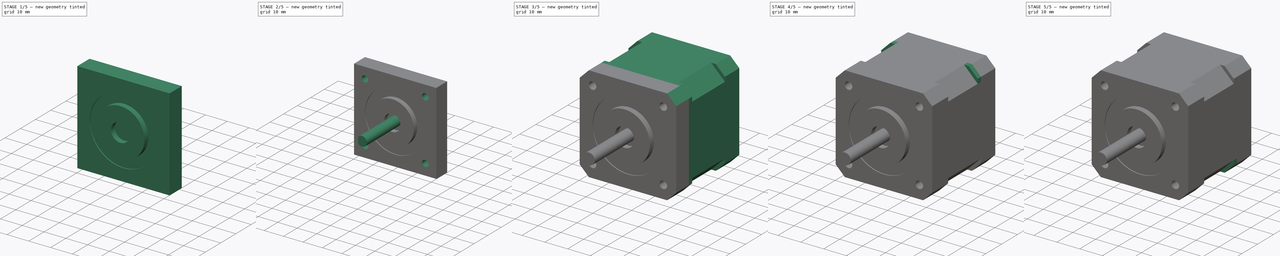
[diagram: build sequence overview — one tinted view per stage of 5, left to right]
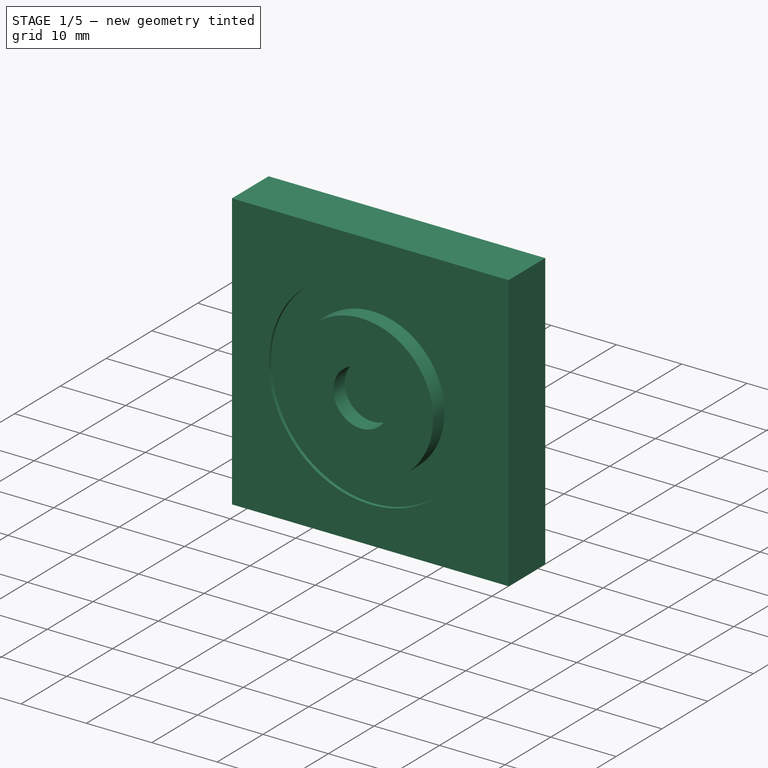
[diagram: stage 1 of 5 — iso view after this stage's code; geometry added in this stage tinted green]
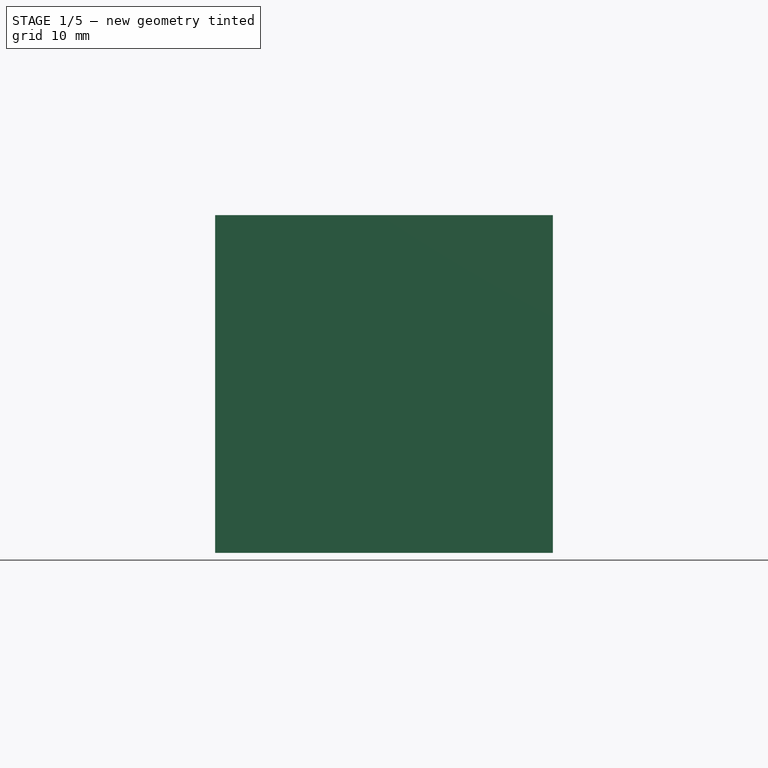
[diagram: stage 1 of 5 — front view after this stage's code; geometry added in this stage tinted green]
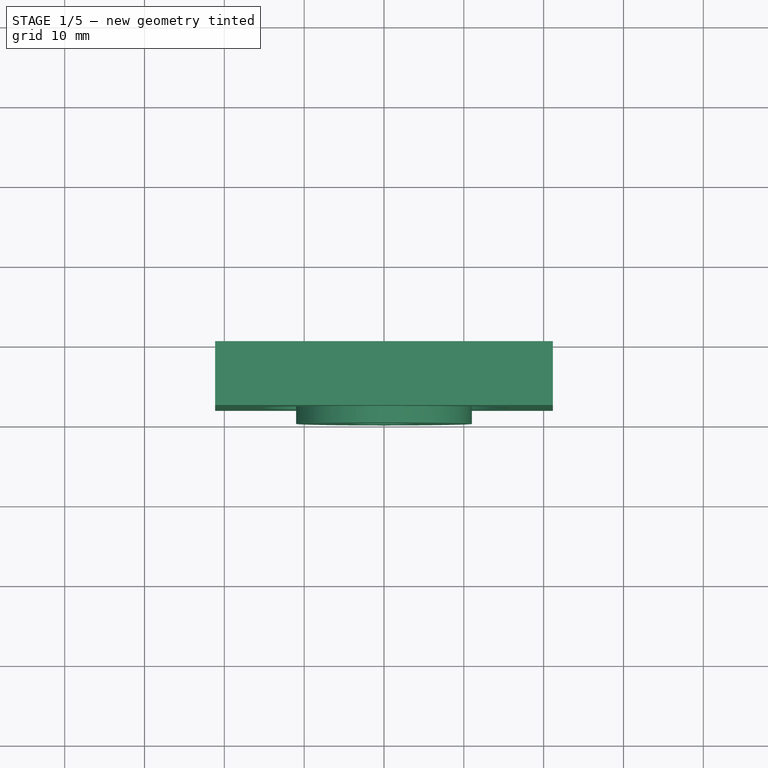
[diagram: stage 1 of 5 — top view after this stage's code; geometry added in this stage tinted green]
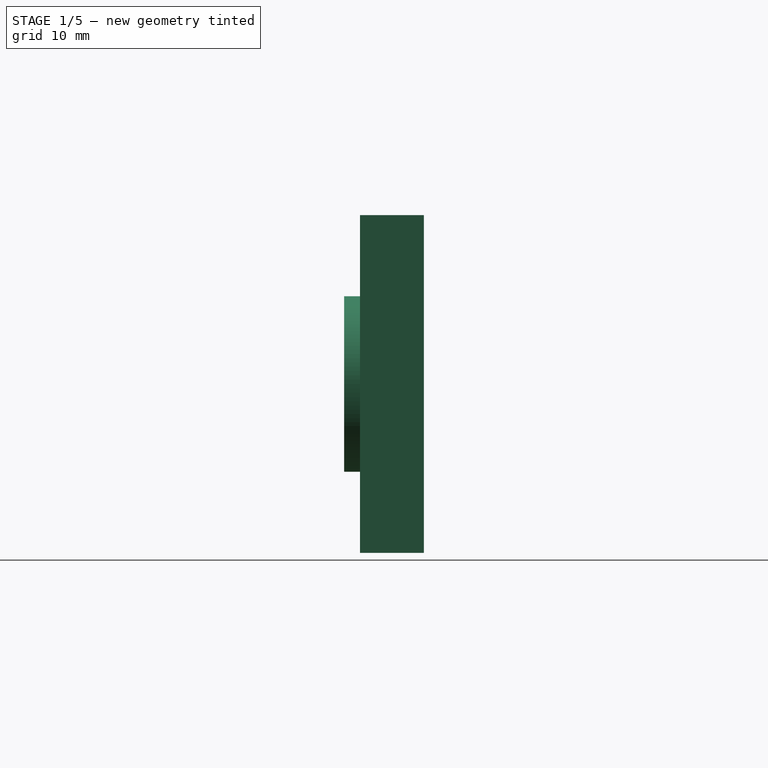
[diagram: stage 1 of 5 — right view after this stage's code; geometry added in this stage tinted green]
FCSTD DOCUMENT  (FreeCAD 0.18.3R)
Label: stepper_motor
License: All rights reserved
LicenseURL: http://en.wikipedia.org/wiki/All_rights_reserved
objects: Sketcher::SketchObject×12, PartDesign::Pad×11, PartDesign::Pocket×5, Part::Feature×4, PartDesign::Hole×1, PartDesign::Chamfer×1, PartDesign::Body×1
note: 52 computed .brp shape members not serialized (recipe doc carries the construction recipe); baked Part::Feature solids carry a one-line shape summary decoded from their .brp

FEATURE [Sketcher::SketchObject] Sketch
  MapMode = 5
  Placement = pos=(0,0,0) rot=(1,0,0;1.5708rad)
  Support = -> [XZ_Plane]
  sketch-geometry (4):
    g0: LineSegment StartX=-21.15 StartY=21.15 StartZ=0 EndX=21.15 EndY=21.15 EndZ=0
    g1: LineSegment StartX=21.15 StartY=21.15 StartZ=0 EndX=21.15 EndY=-21.15 EndZ=0
    g2: LineSegment StartX=21.15 StartY=-21.15 StartZ=0 EndX=-21.15 EndY=-21.15 EndZ=0
    g3: LineSegment StartX=-21.15 StartY=-21.15 StartZ=0 EndX=-21.15 EndY=21.15 EndZ=0
  constraints (10):
    c: Coincident(g0,g1)
    c: Coincident(g1,g2)
    c: Coincident(g2,g3)
    c: Coincident(g3,g0)
    c: Horizontal(g2)
    c: Vertical(g1)
    c: Symmetric(g0,g0,g-2)
    c: Symmetric(g2,g0,g-1)
    c: Equal(g1,g0)
    c: DistanceY(g1,g1) = 42.3
FEATURE [PartDesign::Pad] Pad
  Length = 8
  Length2 = 100
  Placement = pos=(0,0,0) rot=(1,0,0;1.5708rad)
  Profile = -> Sketch
  Type = 0
FEATURE [Sketcher::SketchObject] Sketch001
  MapMode = 5
  Placement = pos=(0,-8,0) rot=(1,0,0;1.5708rad)
  Support = -> [Pad]
  sketch-geometry (1):
    g0: Circle CenterX=0 CenterY=0 CenterZ=0 NormalX=0 NormalY=0 NormalZ=1 AngleXU=0 Radius=15.5
  constraints (2):
    c: Coincident(g0,g-1)
    c: Diameter(g0) = 31
FEATURE [PartDesign::Pocket] Pocket
  BaseFeature = -> Pad
  Length = 0.5
  Length2 = 100
  Placement = pos=(0,0,0) rot=(1,0,0;1.5708rad)
  Profile = -> Sketch001
  Type = 0
FEATURE [Sketcher::SketchObject] Sketch002
  MapMode = 5
  Placement = pos=(2e-16,-7.5,-1e-16) rot=(1,0,0;1.5708rad)
  Support = -> [Pocket]
  sketch-geometry (1):
    g0: Circle CenterX=0 CenterY=0 CenterZ=0 NormalX=0 NormalY=0 NormalZ=1 AngleXU=0 Radius=11
  constraints (2):
    c: Coincident(g0,g-1)
    c: Diameter(g0) = 22
FEATURE [PartDesign::Pad] Pad001
  BaseFeature = -> Pocket
  Length = 2.5
  Length2 = 100
  Placement = pos=(0,0,0) rot=(1,0,0;1.5708rad)
  Profile = -> Sketch002
  Type = 0
FEATURE [Sketcher::SketchObject] Sketch003
  MapMode = 5
  Placement = pos=(0,-10,3e-16) rot=(1,0,0;1.5708rad)
  Support = -> [Pad001]
  sketch-geometry (1):
    g0: Circle CenterX=0 CenterY=0 CenterZ=0 NormalX=0 NormalY=0 NormalZ=1 AngleXU=0 Radius=4.25
  constraints (2):
    c: Coincident(g0,g-1)
    c: Diameter(g0) = 8.5
FEATURE [PartDesign::Pocket] Pocket001
  BaseFeature = -> Pad001
  Length = 2.5
  Length2 = 100
  Placement = pos=(0,0,0) rot=(1,0,0;1.5708rad)
  Profile = -> Sketch003
  Type = 0
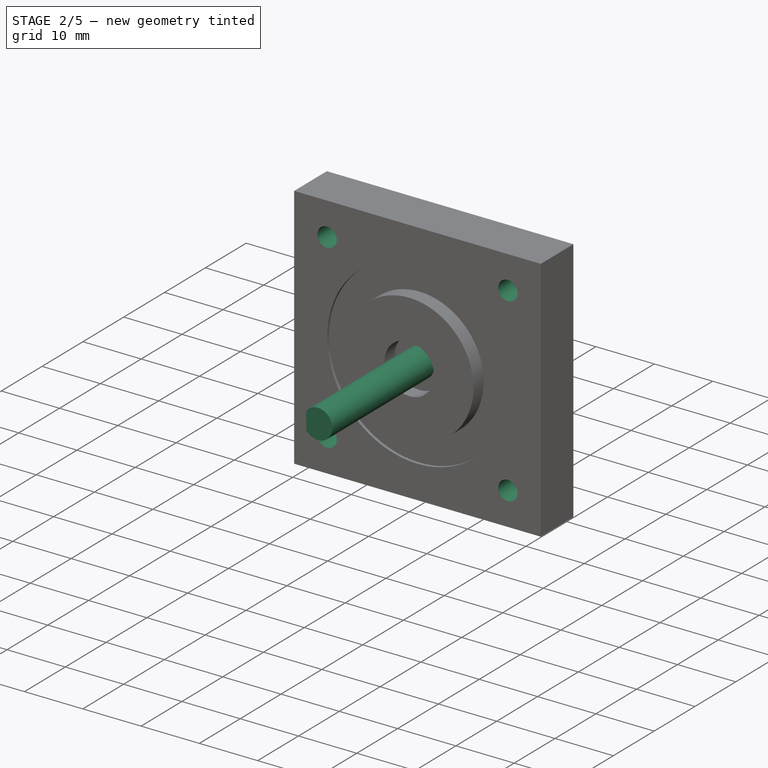
[diagram: stage 2 of 5 — iso view after this stage's code; geometry added in this stage tinted green]
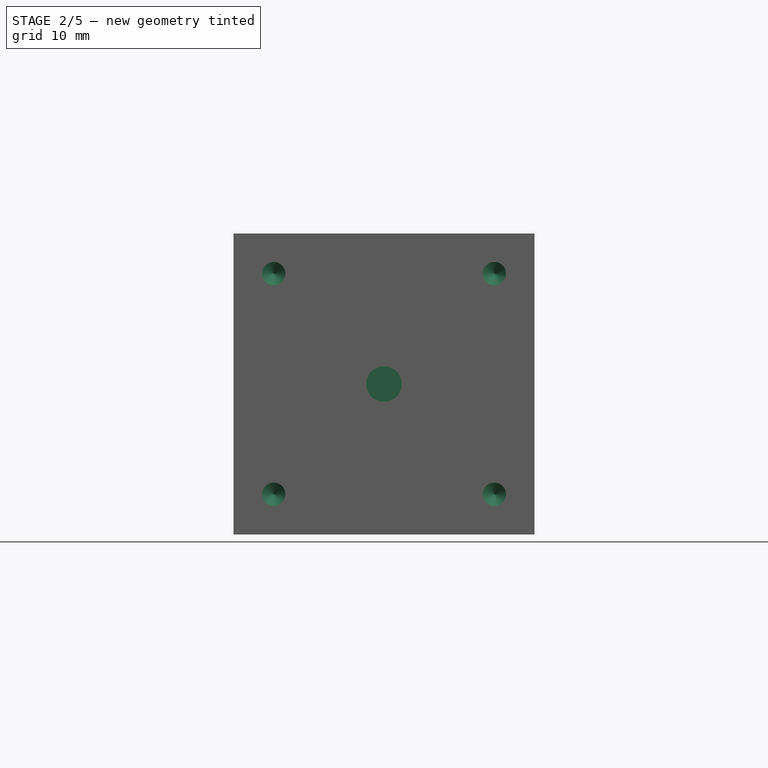
[diagram: stage 2 of 5 — front view after this stage's code; geometry added in this stage tinted green]
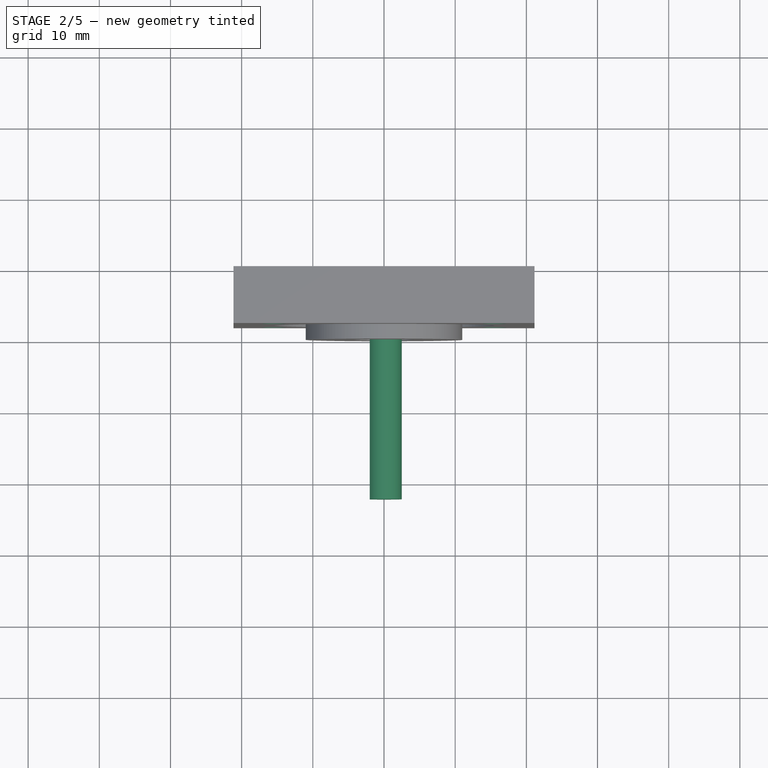
[diagram: stage 2 of 5 — top view after this stage's code; geometry added in this stage tinted green]
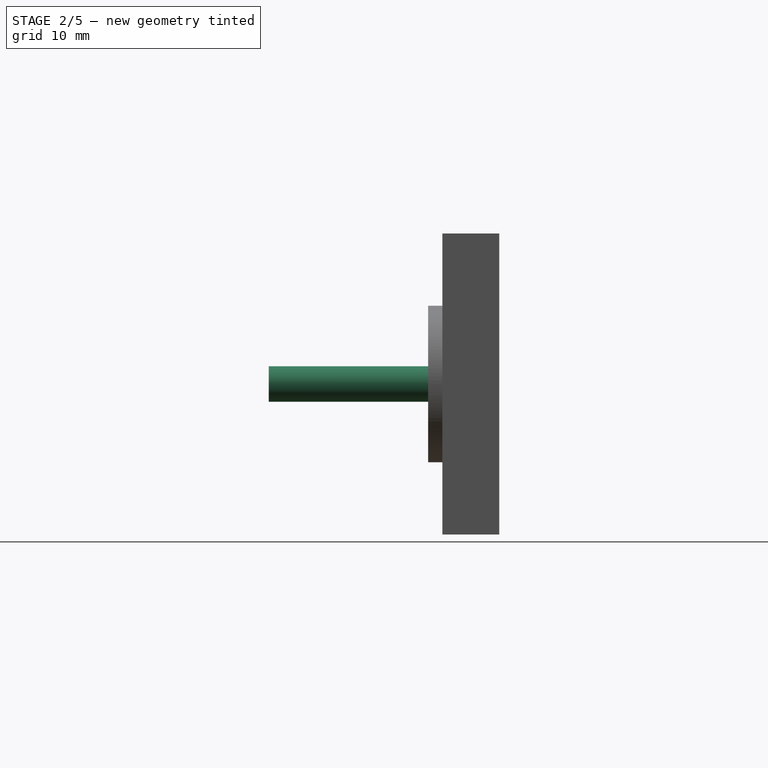
[diagram: stage 2 of 5 — right view after this stage's code; geometry added in this stage tinted green]
FEATURE [Sketcher::SketchObject] Sketch004
  MapMode = 5
  Placement = pos=(0,-7.5,1.7e-15) rot=(1,0,0;1.5708rad)
  Support = -> [Pocket001]
  sketch-geometry (1):
    g0: Circle CenterX=0 CenterY=0 CenterZ=0 NormalX=0 NormalY=0 NormalZ=1 AngleXU=0 Radius=2.5
  constraints (2):
    c: Coincident(g0,g-1)
    c: Diameter(g0) = 5
FEATURE [PartDesign::Pad] Pad002
  BaseFeature = -> Pocket001
  Length = 24.9
  Length2 = 100
  Placement = pos=(0,0,0) rot=(1,0,0;1.5708rad)
  Profile = -> Sketch004
  Type = 0
FEATURE [Sketcher::SketchObject] Sketch005
  MapMode = 5
  Placement = pos=(0,-8,0) rot=(1,0,0;1.5708rad)
  Support = -> [Pad002]
  sketch-geometry (4):
    g0: Circle CenterX=-15.5 CenterY=15.5 CenterZ=0 NormalX=0 NormalY=0 NormalZ=1 AngleXU=0 Radius=1.5
    g1: Circle CenterX=15.5 CenterY=15.5 CenterZ=0 NormalX=0 NormalY=0 NormalZ=1 AngleXU=0 Radius=1.5
    g2: Circle CenterX=15.5 CenterY=-15.5 CenterZ=0 NormalX=0 NormalY=0 NormalZ=1 AngleXU=0 Radius=1.5
    g3: Circle CenterX=-15.5 CenterY=-15.5 CenterZ=0 NormalX=0 NormalY=0 NormalZ=1 AngleXU=0 Radius=1.5
  constraints (10):
    c: Equal(g0,g1)
    c: Equal(g1,g2)
    c: Equal(g2,g3)
    c: Horizontal(g1,g0)
    c: Vertical(g0,g3)
    c: Symmetric(g3,g2,g-2)
    c: Symmetric(g1,g2,g-1)
    c: Diameter(g0) = 3
    c: DistanceX(g0,g1) = 31
    c: DistanceY(g2,g1) = 31
FEATURE [PartDesign::Hole] Hole
  BaseFeature = -> Pad002
  Depth = 4.5
  DepthType = 0
  Diameter = 3.3
  DrillPoint = 1
  DrillPointAngle = 118
  HoleCutCountersinkAngle = 90
  HoleCutDepth = 0
  HoleCutDiameter = 3
  HoleCutType = 0
  ModelActualThread = false
  Placement = pos=(0,0,0) rot=(1,0,0;1.5708rad)
  Profile = -> Sketch005
  Tapered = false
  TaperedAngle = 90
  ThreadAngle = 60
  ThreadClass = 0
  ThreadCutOffInner = 0.0541266
  ThreadCutOffOuter = 0.108253
  ThreadDirection = 0
  ThreadFit = 0
  ThreadPitch = 0.5
  ThreadSize = 3
  ThreadType = 1
  Threaded = false
FEATURE [Sketcher::SketchObject] Sketch006
  ExternalGeometry = -> [Hole]
  MapMode = 5
  Placement = pos=(0,-32.4,2.05e-14) rot=(1,0,0;1.5708rad)
  Support = -> [Hole]
  sketch-geometry (2):
    g0: LineSegment StartX=-2 StartY=1.5 StartZ=0 EndX=-2 EndY=-1.5 EndZ=0
    g1: ArcOfCircle CenterX=4.443e-13 CenterY=2.7e-15 CenterZ=0 NormalX=0 NormalY=0 NormalZ=1 AngleXU=0 Radius=2.5 StartAngle=2.49809 EndAngle=3.78509
  constraints (7):
    c: Vertical(g0)
    c: PointOnObject(g0,g-3)
    c: PointOnObject(g0,g-3)
    c: DistanceX(g0,g-1) = 2
    c: Coincident(g1,g0)
    c: Tangent(g1,g-3)
    c: Coincident(g1,g0)
FEATURE [PartDesign::Pocket] Pocket002
  BaseFeature = -> Hole
  Length = 22.5
  Length2 = 100
  Placement = pos=(0,0,0) rot=(1,0,0;1.5708rad)
  Profile = -> Sketch006
  Type = 0
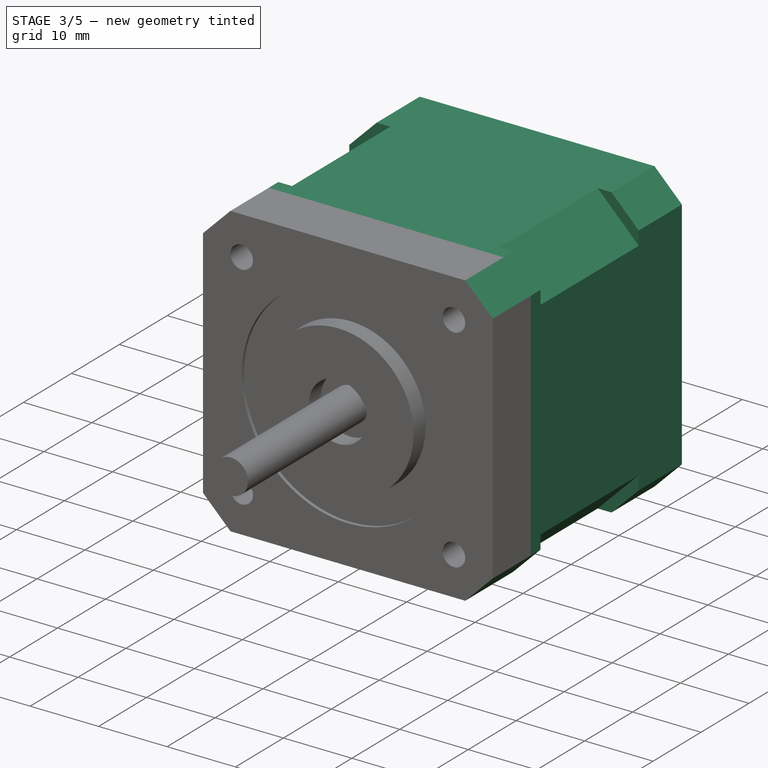
[diagram: stage 3 of 5 — iso view after this stage's code; geometry added in this stage tinted green]
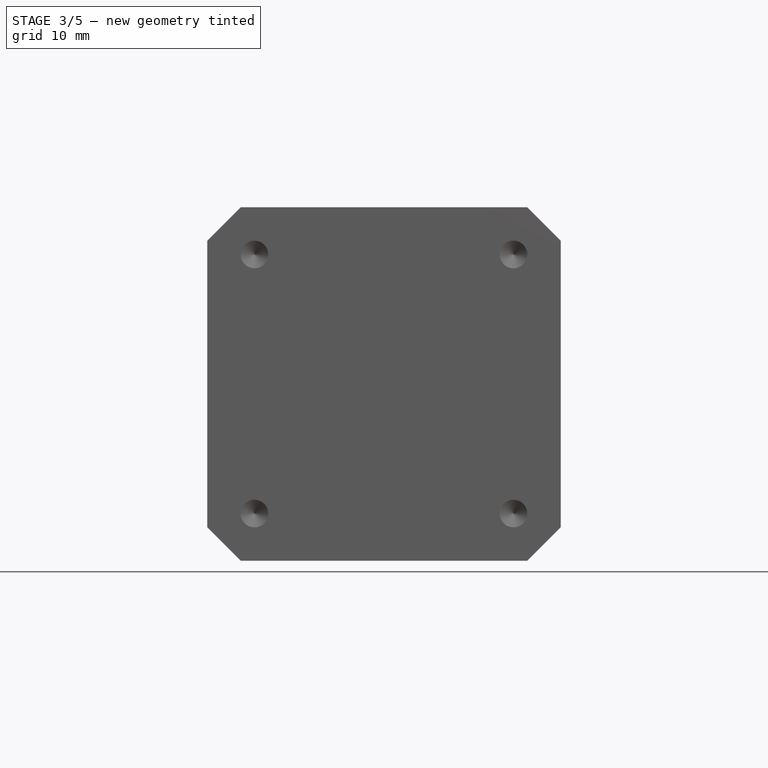
[diagram: stage 3 of 5 — front view after this stage's code; geometry added in this stage tinted green]
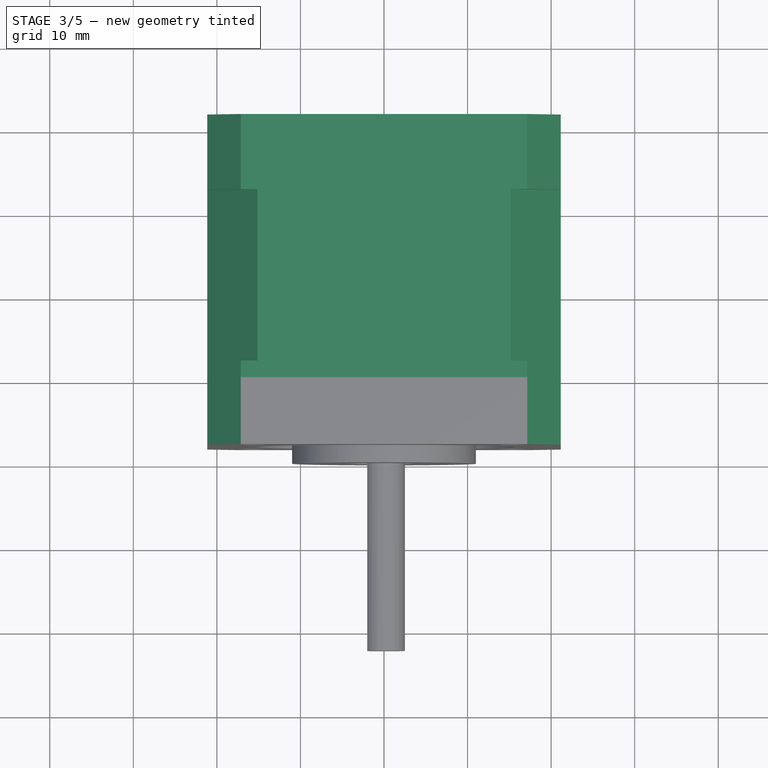
[diagram: stage 3 of 5 — top view after this stage's code; geometry added in this stage tinted green]
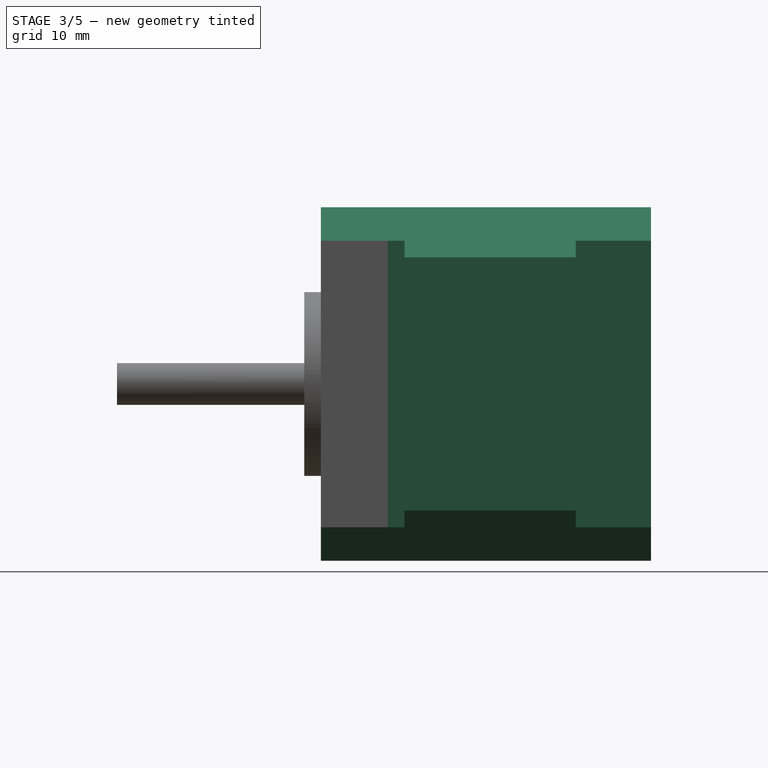
[diagram: stage 3 of 5 — right view after this stage's code; geometry added in this stage tinted green]
FEATURE [PartDesign::Chamfer] Chamfer
  Base = -> Pocket002 [Edge5,Edge1,Edge8,Edge2]
  BaseFeature = -> Pocket002
  Placement = pos=(0,0,0) rot=(1,0,0;1.5708rad)
  Size = 4
FEATURE [Sketcher::SketchObject] Sketch007
  ExternalGeometry = -> [Chamfer]
  MapMode = 5
  Placement = pos=(0,0,0) rot=(-1,0,0;1.5708rad)
  Support = -> [Chamfer]
  sketch-geometry (16):
    g0: LineSegment StartX=-15.15 StartY=21.15 StartZ=0 EndX=-21.15 EndY=15.15 EndZ=0
    g1: LineSegment StartX=-15.15 StartY=21.15 StartZ=0 EndX=-17.15 EndY=21.15 EndZ=0
    g2: LineSegment StartX=-17.15 StartY=21.15 StartZ=0 EndX=-21.15 EndY=17.15 EndZ=0
    g3: LineSegment StartX=-21.15 StartY=17.15 StartZ=0 EndX=-21.15 EndY=15.15 EndZ=0
    g4: LineSegment StartX=15.15 StartY=21.15 StartZ=0 EndX=21.15 EndY=15.15 EndZ=0
    g5: LineSegment StartX=15.15 StartY=21.15 StartZ=0 EndX=17.15 EndY=21.15 EndZ=0
    g6: LineSegment StartX=21.15 StartY=15.15 StartZ=0 EndX=21.15 EndY=17.15 EndZ=0
    g7: LineSegment StartX=21.15 StartY=17.15 StartZ=0 EndX=17.15 EndY=21.15 EndZ=0
    g8: LineSegment StartX=21.15 StartY=-15.15 StartZ=0 EndX=15.15 EndY=-21.15 EndZ=0
    g9: LineSegment StartX=21.15 StartY=-15.15 StartZ=0 EndX=21.15 EndY=-17.15 EndZ=0
    g10: LineSegment StartX=17.15 StartY=-21.15 StartZ=0 EndX=15.15 EndY=-21.15 EndZ=0
    g11: LineSegment StartX=17.15 StartY=-21.15 StartZ=0 EndX=21.15 EndY=-17.15 EndZ=0
    g12: LineSegment StartX=-21.15 StartY=-15.15 StartZ=0 EndX=-15.15 EndY=-21.15 EndZ=0
    g13: LineSegment StartX=-21.15 StartY=-15.15 StartZ=0 EndX=-21.15 EndY=-17.15 EndZ=0
    g14: LineSegment StartX=-15.15 StartY=-21.15 StartZ=0 EndX=-17.15 EndY=-21.15 EndZ=0
    g15: LineSegment StartX=-17.15 StartY=-21.15 StartZ=0 EndX=-21.15 EndY=-17.15 EndZ=0
  constraints (40):
    c: PointOnObject(g0,g-3)
    c: PointOnObject(g0,g-5)
    c: Parallel(g0,g-4)
    c: DistanceX(g-4,g0) = 2
    c: Coincident(g1,g0)
    c: Coincident(g1,g-4)
    c: Coincident(g2,g-5)
    c: Coincident(g3,g2)
    c: Coincident(g3,g0)
    c: Coincident(g2,g1)
    c: PointOnObject(g4,g-7)
    c: PointOnObject(g4,g-3)
    c: Parallel(g4,g-6)
    c: DistanceX(g4,g-6) = 2
    c: Coincident(g5,g4)
    c: Coincident(g5,g-6)
    c: Coincident(g6,g4)
    c: Coincident(g6,g-7)
    c: Coincident(g7,g6)
    c: Coincident(g7,g5)
    c: PointOnObject(g8,g-9)
    c: PointOnObject(g8,g-7)
    c: Parallel(g8,g-8)
    c: DistanceY(g-8,g8) = 2
    c: Coincident(g9,g8)
    c: Coincident(g9,g-8)
    c: Coincident(g10,g-9)
    c: Coincident(g11,g10)
    c: Coincident(g11,g9)
    c: Coincident(g10,g8)
    c: PointOnObject(g12,g-5)
    c: PointOnObject(g12,g-9)
    c: Parallel(g-10,g12)
    c: DistanceY(g-10,g12) = 2
    c: Coincident(g13,g12)
    c: Coincident(g13,g-10)
    c: Coincident(g14,g12)
    c: Coincident(g14,g-10)
    c: Coincident(g15,g14)
    c: Coincident(g15,g13)
FEATURE [PartDesign::Pad] Pad003
  BaseFeature = -> Chamfer
  Length = 2
  Length2 = 100
  Placement = pos=(0,0,0) rot=(1,0,0;1.5708rad)
  Profile = -> Sketch007
  Type = 0
FEATURE [PartDesign::Pad] Pad004
  BaseFeature = -> Pad003
  Length = 22.5
  Length2 = 100
  Placement = pos=(0,0,0) rot=(1,0,0;1.5708rad)
  Profile = -> Pad003 [Face3]
  Type = 0
FEATURE [Sketcher::SketchObject] Sketch008
  ExternalGeometry = -> [Pad004]
  MapMode = 5
  Placement = pos=(0,22.5,0) rot=(-1,0,0;1.5708rad)
  Support = -> [Pad004]
  sketch-geometry (8):
    g0: LineSegment StartX=-21.15 StartY=-17.15 StartZ=0 EndX=-17.15 EndY=-21.15 EndZ=0
    g1: LineSegment StartX=-17.15 StartY=-21.15 StartZ=0 EndX=17.15 EndY=-21.15 EndZ=0
    g2: LineSegment StartX=17.15 StartY=-21.15 StartZ=0 EndX=21.15 EndY=-17.15 EndZ=0
    g3: LineSegment StartX=21.15 StartY=-17.15 StartZ=0 EndX=21.15 EndY=17.15 EndZ=0
    g4: LineSegment StartX=21.15 StartY=17.15 StartZ=0 EndX=17.15 EndY=21.15 EndZ=0
    g5: LineSegment StartX=17.15 StartY=21.15 StartZ=0 EndX=-17.15 EndY=21.15 EndZ=0
    g6: LineSegment StartX=-17.15 StartY=21.15 StartZ=0 EndX=-21.15 EndY=17.15 EndZ=0
    g7: LineSegment StartX=-21.15 StartY=17.15 StartZ=0 EndX=-21.15 EndY=-17.15 EndZ=0
  constraints (16):
    c: Coincident(g0,g-9)
    c: Coincident(g0,g-10)
    c: Coincident(g1,g0)
    c: Coincident(g-8,g1)
    c: Coincident(g2,g1)
    c: Coincident(g2,g-7)
    c: Coincident(g3,g2)
    c: Coincident(g3,g-6)
    c: Coincident(g4,g3)
    c: Coincident(g4,g-5)
    c: Coincident(g5,g4)
    c: Coincident(g5,g-3)
    c: Coincident(g6,g5)
    c: Coincident(g6,g-4)
    c: Coincident(g7,g6)
    c: Coincident(g7,g0)
FEATURE [PartDesign::Pad] Pad005
  BaseFeature = -> Pad004
  Length = 9
  Length2 = 100
  Placement = pos=(0,0,0) rot=(1,0,0;1.5708rad)
  Profile = -> Sketch008
  Type = 0
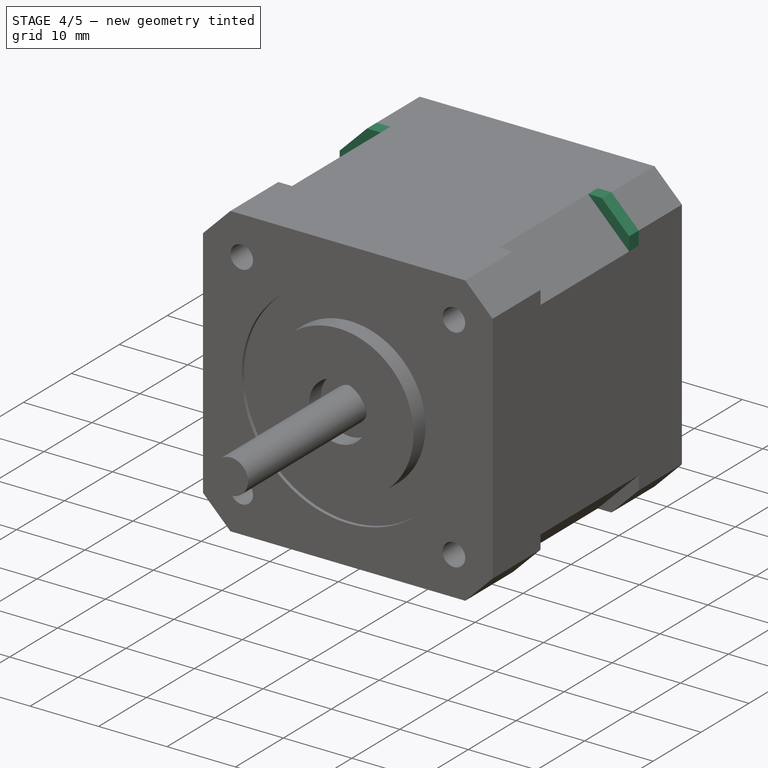
[diagram: stage 4 of 5 — iso view after this stage's code; geometry added in this stage tinted green]
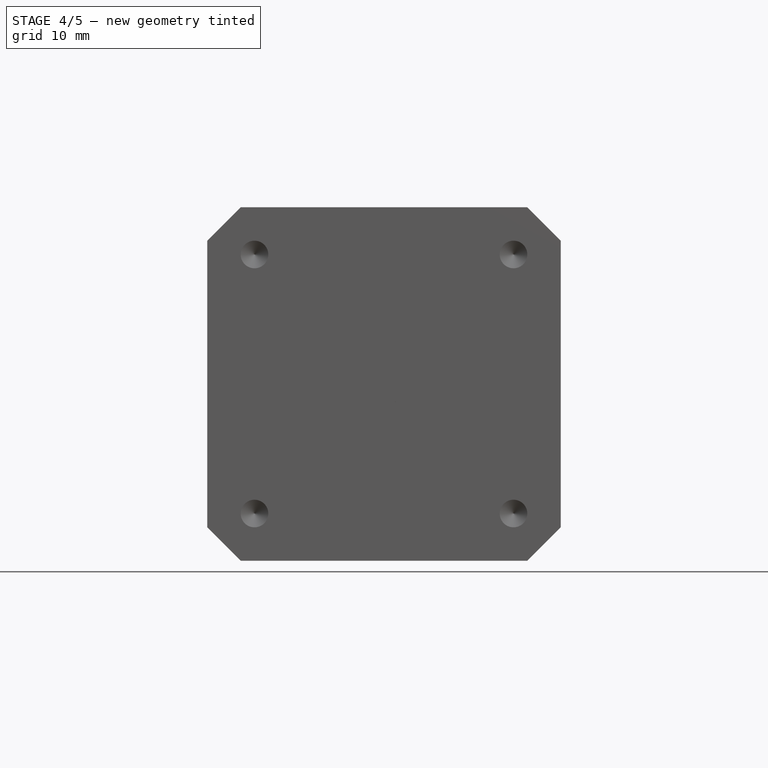
[diagram: stage 4 of 5 — front view after this stage's code; geometry added in this stage tinted green]
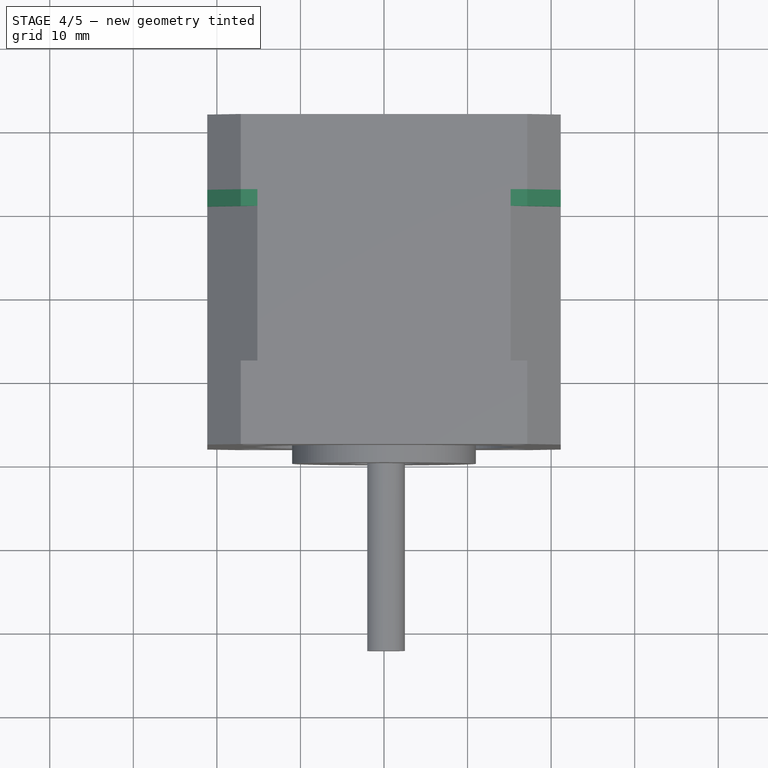
[diagram: stage 4 of 5 — top view after this stage's code; geometry added in this stage tinted green]
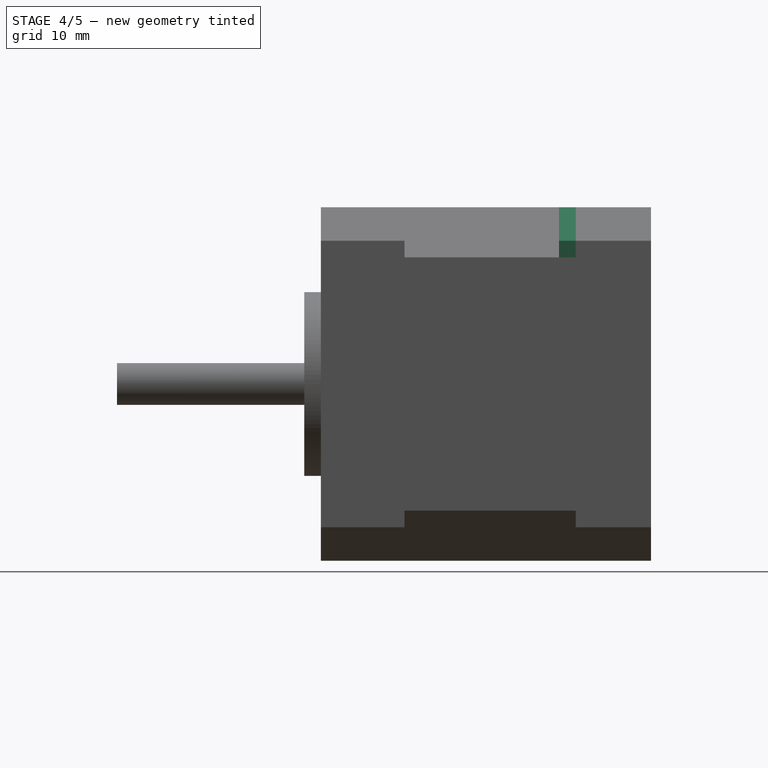
[diagram: stage 4 of 5 — right view after this stage's code; geometry added in this stage tinted green]
FEATURE [PartDesign::Pad] Pad006
  BaseFeature = -> Pad005
  Length = 2
  Length2 = 100
  Placement = pos=(0,0,0) rot=(1,0,0;1.5708rad)
  Profile = -> Pad005 [Face7]
  Type = 0
FEATURE [PartDesign::Pad] Pad007
  BaseFeature = -> Pad006
  Length = 2
  Length2 = 100
  Placement = pos=(0,0,0) rot=(1,0,0;1.5708rad)
  Profile = -> Pad006 [Face4]
  Type = 0
FEATURE [PartDesign::Pad] Pad008
  BaseFeature = -> Pad007
  Length = 2
  Length2 = 100
  Placement = pos=(0,0,0) rot=(1,0,0;1.5708rad)
  Profile = -> Pad007 [Face13]
  Type = 0
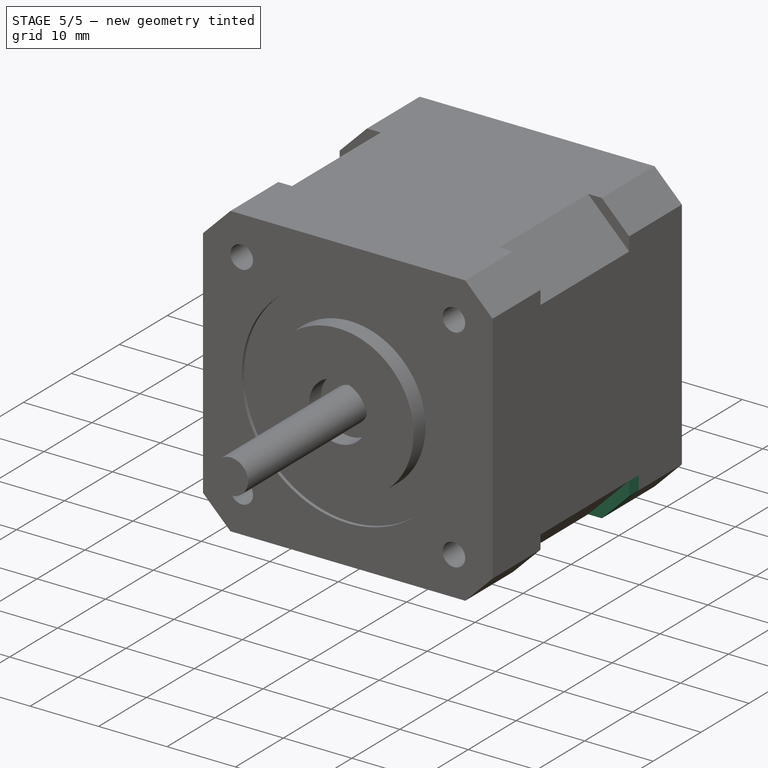
[diagram: stage 5 of 5 — iso view after this stage's code; geometry added in this stage tinted green]
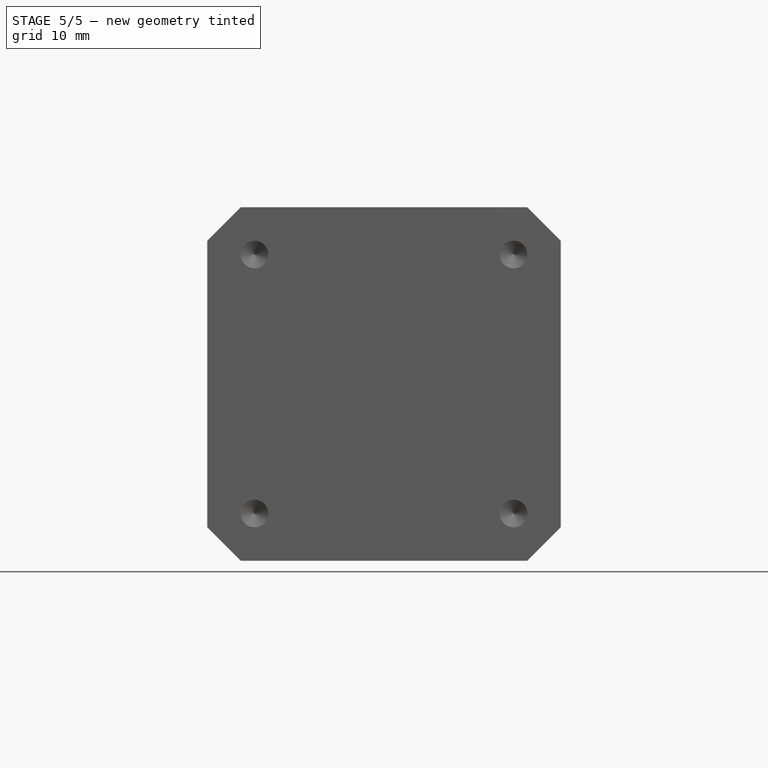
[diagram: stage 5 of 5 — front view after this stage's code; geometry added in this stage tinted green]
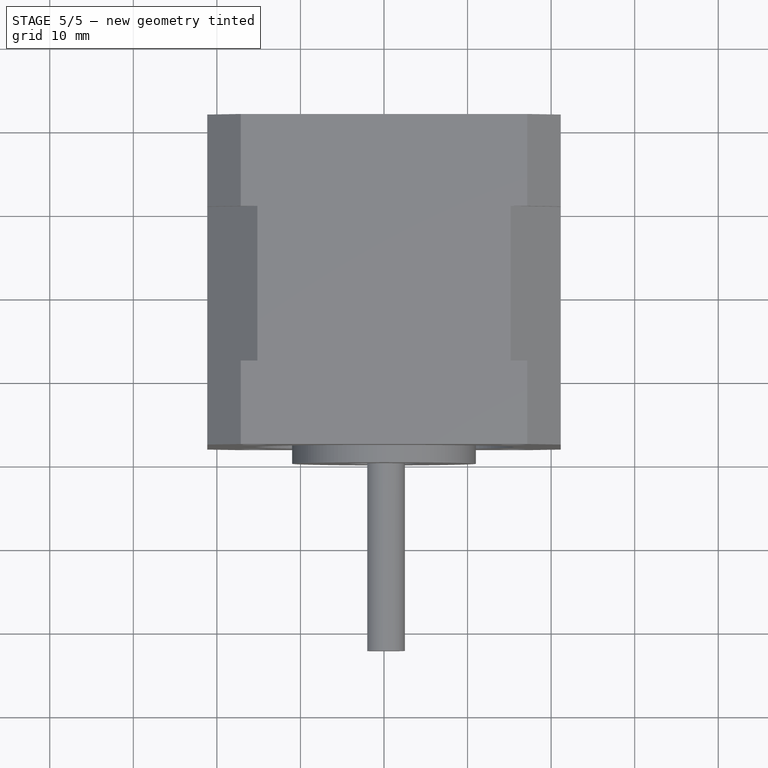
[diagram: stage 5 of 5 — top view after this stage's code; geometry added in this stage tinted green]
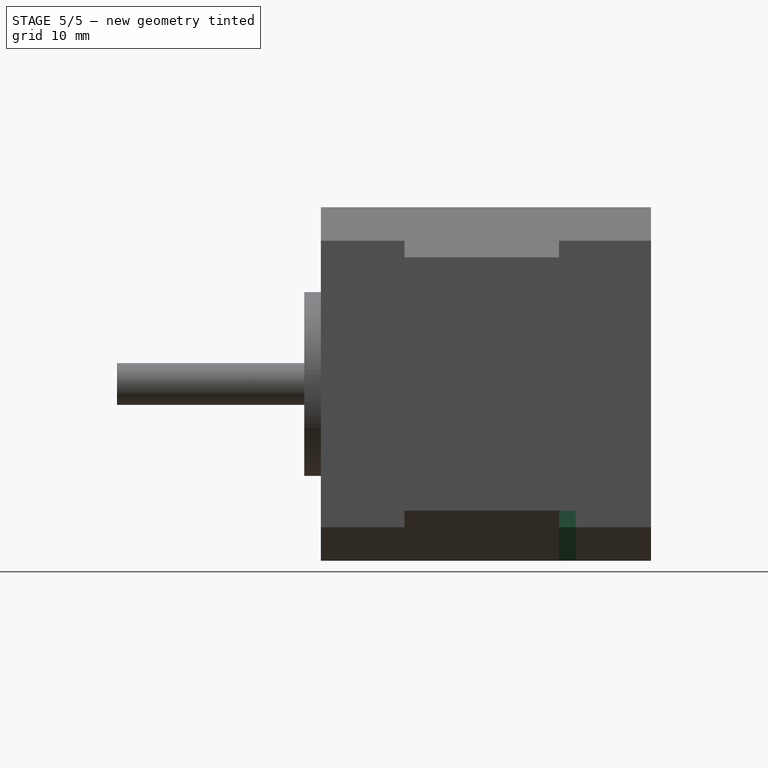
[diagram: stage 5 of 5 — right view after this stage's code; geometry added in this stage tinted green]
FEATURE [PartDesign::Pad] Pad009
  BaseFeature = -> Pad008
  Length = 2
  Length2 = 100
  Placement = pos=(0,0,0) rot=(1,0,0;1.5708rad)
  Profile = -> Pad008 [Face33]
  Type = 0
FEATURE [Sketcher::SketchObject] Sketch009
  MapMode = 5
  Placement = pos=(0,31.5,-1.3e-15) rot=(-1,0,0;1.5708rad)
  Support = -> [Pad009]
  sketch-geometry (1):
    g0: Circle CenterX=0 CenterY=0 CenterZ=0 NormalX=0 NormalY=0 NormalZ=1 AngleXU=0 Radius=4.3
  constraints (2):
    c: Coincident(g0,g-1)
    c: Diameter(g0) = 8.6
FEATURE [PartDesign::Pocket] Pocket003
  BaseFeature = -> Pad009
  Length = 3.5
  Length2 = 100
  Placement = pos=(0,0,0) rot=(1,0,0;1.5708rad)
  Profile = -> Sketch009
  Type = 0
FEATURE [Sketcher::SketchObject] Sketch010
  MapMode = 5
  Placement = pos=(0,28,-6.2e-15) rot=(-1,0,0;1.5708rad)
  Support = -> [Pocket003]
  sketch-geometry (1):
    g0: Circle CenterX=0 CenterY=0 CenterZ=0 NormalX=0 NormalY=0 NormalZ=1 AngleXU=0 Radius=2.5
  constraints (2):
    c: Coincident(g0,g-1)
    c: Diameter(g0) = 5
FEATURE [PartDesign::Pad] Pad010
  BaseFeature = -> Pocket003
  Length = 1
  Length2 = 100
  Placement = pos=(0,0,0) rot=(1,0,0;1.5708rad)
  Profile = -> Sketch010
  Type = 0
FEATURE [Sketcher::SketchObject] Sketch011
  MapMode = 5
  Placement = pos=(0,31.5,-1.3e-15) rot=(-1,0,0;1.5708rad)
  Support = -> [Pad010]
  sketch-geometry (4):
    g0: Circle CenterX=-15.5 CenterY=15.5 CenterZ=0 NormalX=0 NormalY=0 NormalZ=1 AngleXU=0 Radius=3
    g1: Circle CenterX=15.5 CenterY=15.5 CenterZ=0 NormalX=0 NormalY=0 NormalZ=1 AngleXU=0 Radius=3
    g2: Circle CenterX=-15.5 CenterY=-15.5 CenterZ=0 NormalX=0 NormalY=0 NormalZ=1 AngleXU=0 Radius=3
    g3: Circle CenterX=15.5 CenterY=-15.5 CenterZ=0 NormalX=0 NormalY=0 NormalZ=1 AngleXU=0 Radius=3
  constraints (10):
    c: Diameter(g0) = 6
    c: Equal(g0,g1)
    c: Equal(g1,g3)
    c: Equal(g3,g2)
    c: Symmetric(g1,g0,g-2)
    c: Symmetric(g3,g1,g-1)
    c: Vertical(g0,g2)
    c: Horizontal(g2,g3)
    c: DistanceX(g0,g1) = 31
    c: DistanceY(g3,g1) = 31
FEATURE [PartDesign::Pocket] Pocket004
  BaseFeature = -> Pad010
  Length = 3
  Length2 = 100
  Placement = pos=(0,0,0) rot=(1,0,0;1.5708rad)
  Profile = -> Sketch011
  Type = 0
FEATURE [PartDesign::Body] Body
  Group = -> [Sketch,Pad,Sketch001,Pocket,Sketch002,Pad001,Sketch003,Pocket001,Sketch004,Pad002,Sketch005,Hole,Sketch006,Pocket002,Chamfer,Sketch007,Pad003,Pad004,Sketch008,Pad005,Pad006,Pad007,Pad008,Pad009,Sketch009,Pocket003,Sketch010,Pad010,Sketch011,Pocket004]
  Origin = -> Origin
  Placement = pos=(0,0,0) rot=(0,1,0;1.5708rad)
  Tip = -> Pocket004
FEATURE [Part::Feature] M3x8_Screw_Copy  label="M3x8_Screw_000"
  Placement = pos=(15.5,29.1,15.5) rot=(-1,0,0;1.5708rad)
  shape: bbox 5.6 x 10.35 x 5.6 mm, 27 faces (baked)
FEATURE [Part::Feature] M3x8_Screw_Copy001  label="M3x8_Screw_001"
  Placement = pos=(15.5,29.1,-15.5) rot=(-1,0,0;1.5708rad)
  shape: bbox 5.6 x 10.35 x 5.6 mm, 27 faces (baked)
FEATURE [Part::Feature] M3x8_Screw_Copy002  label="M3x8_Screw_002"
  Placement = pos=(-15.5,29.1,-15.5) rot=(-1,0,0;1.5708rad)
  shape: bbox 5.6 x 10.35 x 5.6 mm, 27 faces (baked)
FEATURE [Part::Feature] M3x8_Screw_Copy003  label="M3x8_Screw_003"
  Placement = pos=(-15.5,29.1,15.5) rot=(-1,0,0;1.5708rad)
  shape: bbox 5.6 x 10.35 x 5.6 mm, 27 faces (baked)
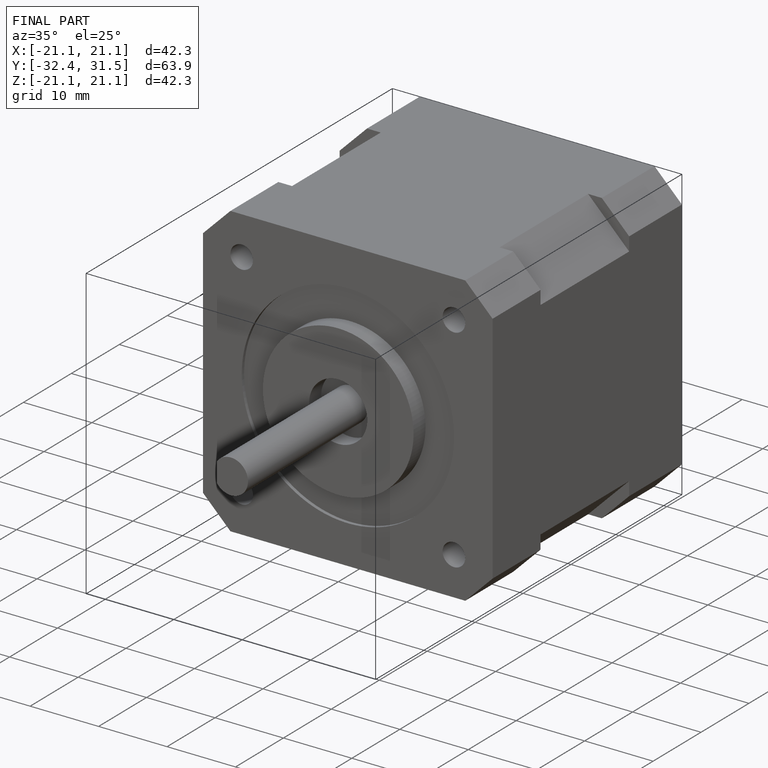
[diagram: finished part — iso view with bounding-box wireframe]
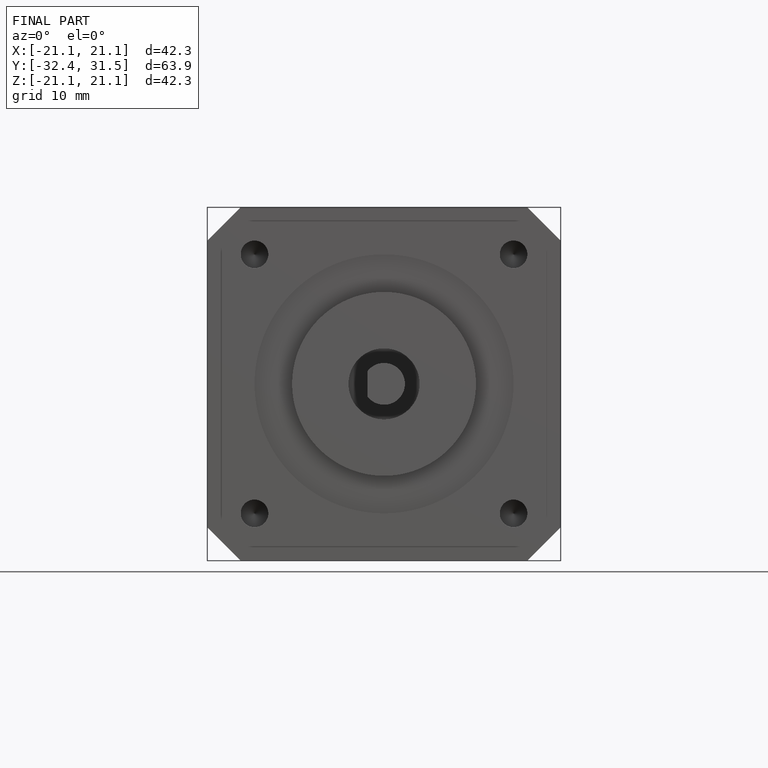
[diagram: finished part — front view with bounding-box wireframe]
